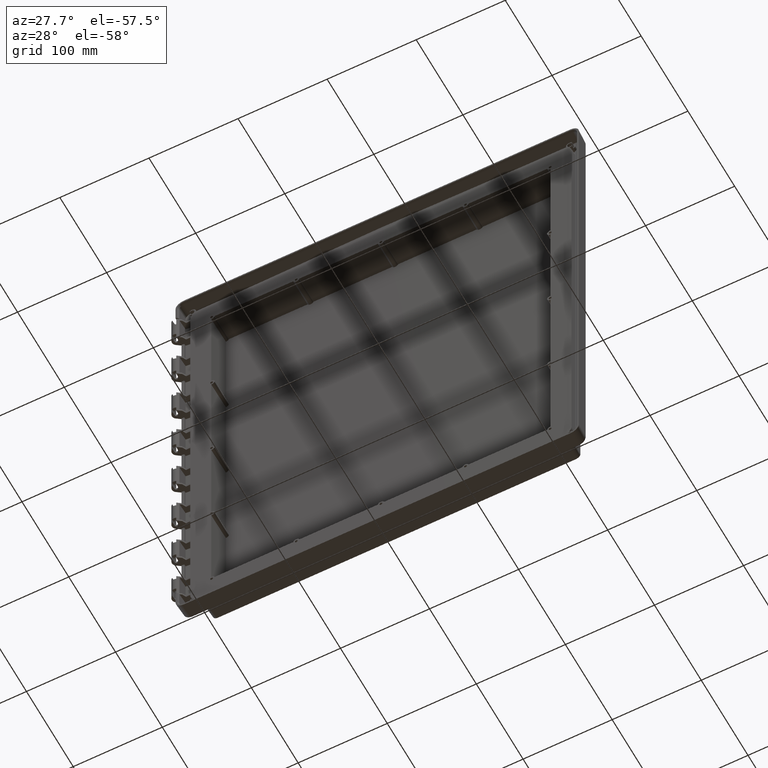
[diagram: clean part render]
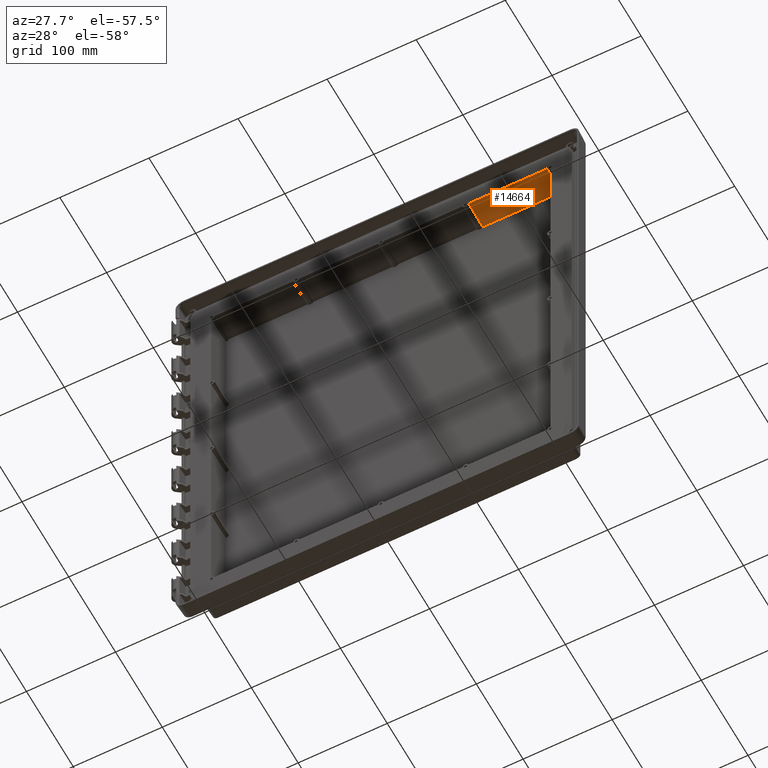
[diagram: same view with one face highlighted and labeled with its STEP entity id]
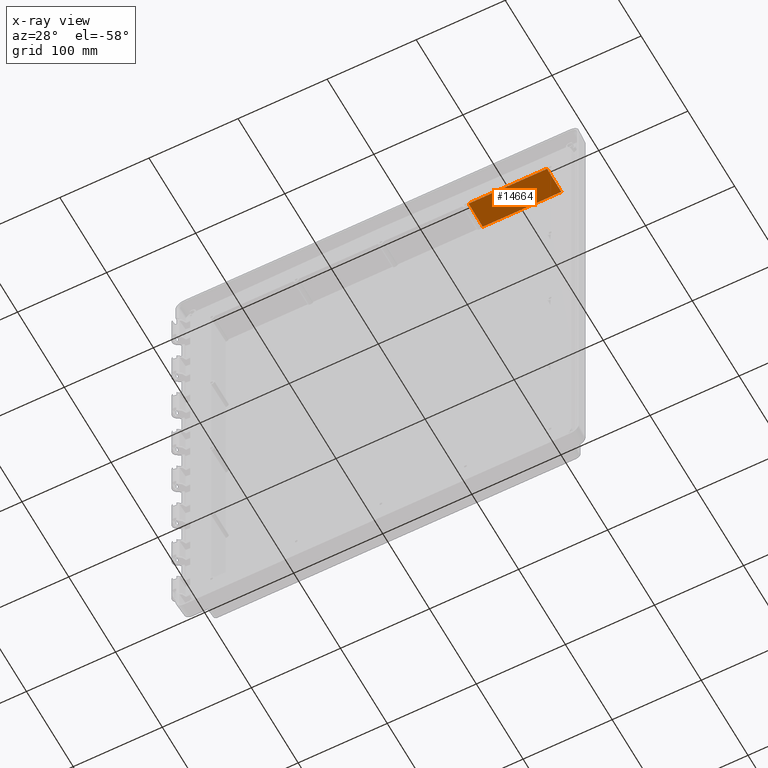
[diagram: x-ray of the same camera — body ghosted, the highlighted face saturated]
A machine part, auxiliary view. The second image highlights one B-rep face of the part: STEP entity #14664.
The next image is the same camera in x-ray: the body ghosted, the highlighted face saturated — about 0% of this face is hidden behind the body in this view.
In plain terms, the highlighted planar face has unit normal (0, -0.0175, -0.9998).
Its self-contained STEP definition (entity closure, byte-faithful):
#506 = CARTESIAN_POINT ( 'NONE',  ( 98.40557885674164100, 6.339083248674782600, 241.1718958253808600 ) ) ;
#510 = DIRECTION ( 'NONE',  ( 0.0000000000000000000, -0.01745240643727984800, -0.9998476951563913800 ) ) ;
#1917 =( BOUNDED_CURVE ( )  B_SPLINE_CURVE ( 3, ( #2729, #506, #19854, #17716 ),
 .UNSPECIFIED., .F., .T. ) 
 B_SPLINE_CURVE_WITH_KNOTS ( ( 4, 4 ),
 ( 1.756907381563096200, 1.914151402555103600 ),
 .UNSPECIFIED. ) 
 CURVE ( )  GEOMETRIC_REPRESENTATION_ITEM ( )  RATIONAL_B_SPLINE_CURVE ( ( 1.000000000000000000, 0.9979405876576229500, 0.9979405876576229500, 1.000000000000000000 ) ) 
 REPRESENTATION_ITEM ( '' )  );
#2402 = VERTEX_POINT ( 'NONE', #21446 ) ;
#2411 = ORIENTED_EDGE ( 'NONE', *, *, #20190, .T. ) ;
#2550 = VERTEX_POINT ( 'NONE', #14574 ) ;
#2729 = CARTESIAN_POINT ( 'NONE',  ( 98.43955944258615900, -4.000000000000000900, 241.3523651947923000 ) ) ;
#2733 = CARTESIAN_POINT ( 'NONE',  ( 139.6100000000000100, -1.000000000000000000, 241.3000000000000100 ) ) ;
#3743 = CARTESIAN_POINT ( 'NONE',  ( 186.5604405574138400, -4.000000000000000900, 241.3523651947923000 ) ) ;
#3756 = ORIENTED_EDGE ( 'NONE', *, *, #10948, .F. ) ;
#3806 = ORIENTED_EDGE ( 'NONE', *, *, #14932, .T. ) ;
#3886 = EDGE_CURVE ( 'NONE', #6477, #2550, #9817, .T. ) ;
#4299 = DIRECTION ( 'NONE',  ( -1.000000000000000000, 0.0000000000000000000, 0.0000000000000000000 ) ) ;
#4948 = PLANE ( 'NONE',  #9589 ) ;
#5941 = CARTESIAN_POINT ( 'NONE',  ( 186.5944211432583600, 6.339083248674585400, 241.1718958253808600 ) ) ;
#6477 = VERTEX_POINT ( 'NONE', #18290 ) ;
#6491 = CARTESIAN_POINT ( 'NONE',  ( 186.5604405574000000, -4.000000000000000000, 241.3523651948000000 ) ) ;
#6571 = VERTEX_POINT ( 'NONE', #19161 ) ;
#8169 = CARTESIAN_POINT ( 'NONE',  ( 186.6424710103275400, 16.49332835968637300, 240.9946528176711000 ) ) ;
#8441 = VECTOR ( 'NONE', #4299, 1000.000000000000000 ) ;
#8739 = LINE ( 'NONE', #6491, #8441 ) ;
#9589 = AXIS2_PLACEMENT_3D ( 'NONE', #2733, #510, #19859 ) ;
#9678 = FACE_OUTER_BOUND ( 'NONE', #19965, .T. ) ;
#9817 =( BOUNDED_CURVE ( )  B_SPLINE_CURVE ( 3, ( #10416, #8169, #5941, #3743 ),
 .UNSPECIFIED., .F., .F. ) 
 B_SPLINE_CURVE_WITH_KNOTS ( ( 4, 4 ),
 ( 4.369033904624481900, 4.526277925616492200 ),
 .UNSPECIFIED. ) 
 CURVE ( )  GEOMETRIC_REPRESENTATION_ITEM ( )  RATIONAL_B_SPLINE_CURVE ( ( 1.000000000000000000, 0.9979405876576228400, 0.9979405876576228400, 1.000000000000000000 ) ) 
 REPRESENTATION_ITEM ( '' )  );
#10416 = CARTESIAN_POINT ( 'NONE',  ( 186.7042932951497700, 26.39999999999999900, 240.8217312209834800 ) ) ;
#10858 = VECTOR ( 'NONE', #13505, 1000.000000000000000 ) ;
#10948 = EDGE_CURVE ( 'NONE', #6477, #6571, #17902, .T. ) ;
#13505 = DIRECTION ( 'NONE',  ( -1.000000000000000000, 0.0000000000000000000, 0.0000000000000000000 ) ) ;
#14574 = CARTESIAN_POINT ( 'NONE',  ( 186.5604405574138400, -4.000000000000000900, 241.3523651947923000 ) ) ;
#14664 = ADVANCED_FACE ( 'NONE', ( #9678 ), #4948, .T. ) ;
#14932 = EDGE_CURVE ( 'NONE', #2550, #2402, #8739, .T. ) ;
#15717 = CARTESIAN_POINT ( 'NONE',  ( 186.7042932951999900, 26.39999999999999900, 240.8217312209999900 ) ) ;
#17716 = CARTESIAN_POINT ( 'NONE',  ( 98.29570670485026100, 26.39999999999999900, 240.8217312209834800 ) ) ;
#17902 = LINE ( 'NONE', #15717, #10858 ) ;
#18143 = ORIENTED_EDGE ( 'NONE', *, *, #3886, .T. ) ;
#18290 = CARTESIAN_POINT ( 'NONE',  ( 186.7042932951497700, 26.39999999999999900, 240.8217312209834800 ) ) ;
#19161 = CARTESIAN_POINT ( 'NONE',  ( 98.29570670485026100, 26.39999999999999900, 240.8217312209834800 ) ) ;
#19854 = CARTESIAN_POINT ( 'NONE',  ( 98.35752898967244600, 16.49332835968638700, 240.9946528176711200 ) ) ;
#19859 = DIRECTION ( 'NONE',  ( 0.0000000000000000000, 0.9998476951563912700, -0.01745240643727984400 ) ) ;
#19965 = EDGE_LOOP ( 'NONE', ( #3806, #2411, #3756, #18143 ) ) ;
#20190 = EDGE_CURVE ( 'NONE', #2402, #6571, #1917, .T. ) ;
#21446 = CARTESIAN_POINT ( 'NONE',  ( 98.43955944258615900, -4.000000000000000900, 241.3523651947923000 ) ) ;